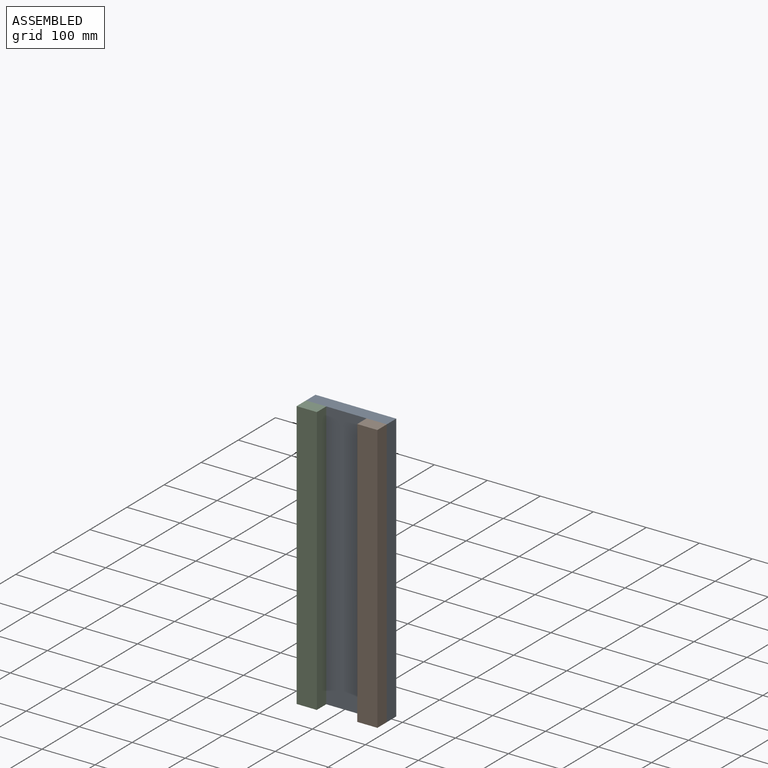
[diagram: assembled view]
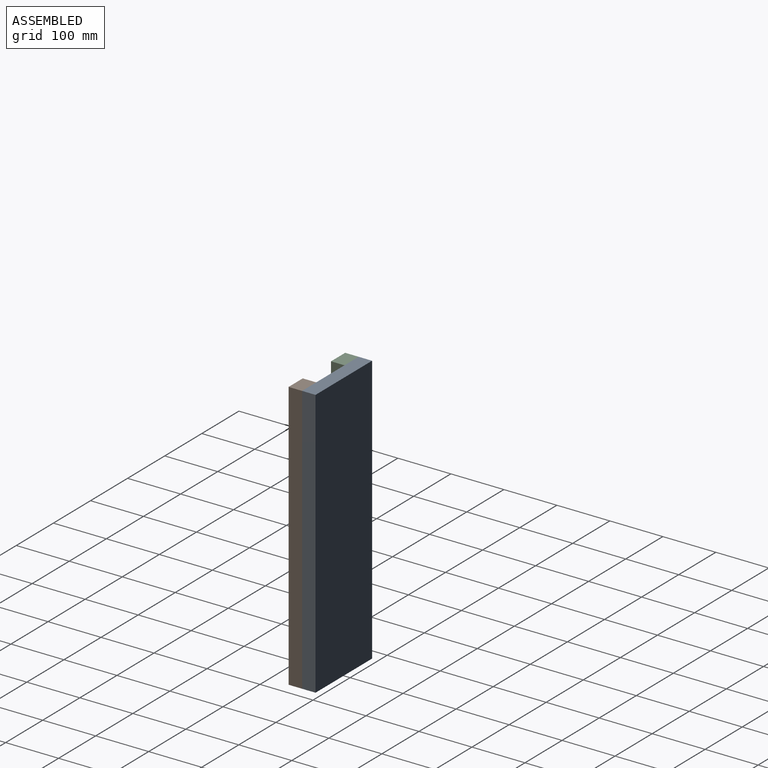
[diagram: assembled view, second angle]
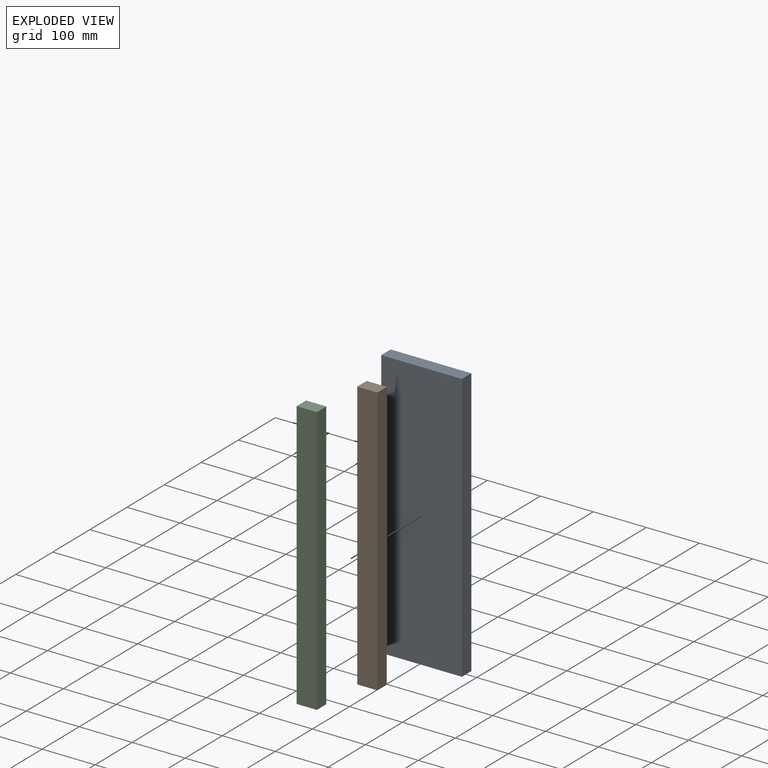
[diagram: exploded view]
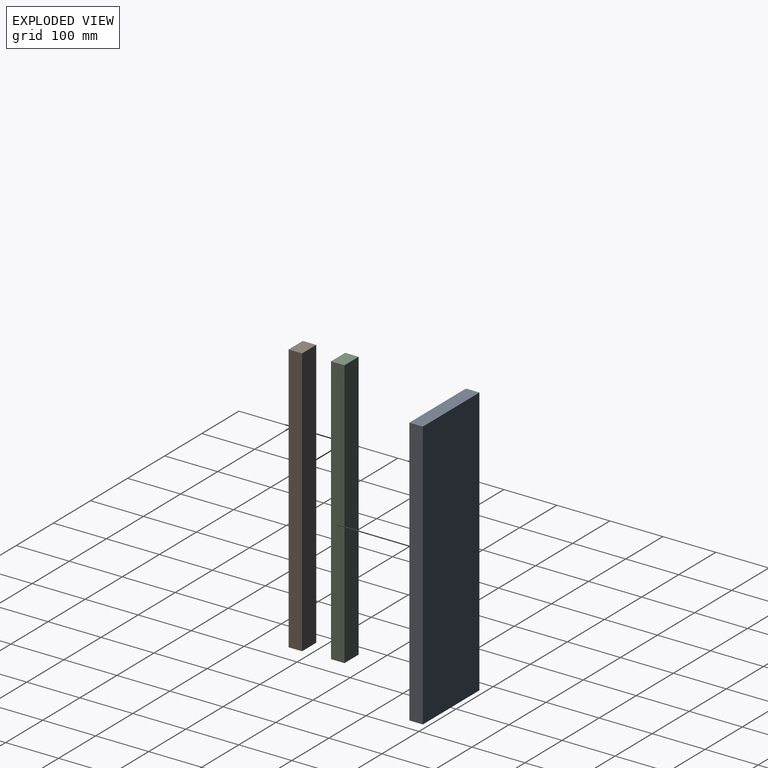
[diagram: exploded view, second angle]
ASSEMBLY  parts=3 mates=2
PART A: 6 faces, bbox 152.4x25.4x508 mm
  f0: plane 508x25.4mm, normal (1,0,0), area 12903.2mm2, adj f1,f3,f4,f5
  f1: plane 152.4x25.4mm, normal (0,0,1), area 3871mm2, adj f0,f2,f4,f5
  f2: plane 508x25.4mm, normal (-1,0,0), area 12903.2mm2, adj f1,f3,f4,f5
  f3: plane 152.4x25.4mm, normal (0,0,-1), area 3871mm2, adj f0,f2,f4,f5
  f4: plane 508x152.4mm, normal (0,1,0), area 77419.2mm2, adj f0,f1,f2,f3
  f5: plane 508x152.4mm, normal (0,-1,0), area 77419.2mm2, adj f0,f1,f2,f3
PART B: 6 faces, bbox 38.1x25.4x508 mm
  f0: plane 508x25.4mm, normal (1,0,0), area 12903.2mm2, adj f1,f3,f4,f5
  f1: plane 38.1x25.4mm, normal (0,0,1), area 967.7mm2, adj f0,f2,f4,f5
  f2: plane 508x25.4mm, normal (-1,0,0), area 12903.2mm2, adj f1,f3,f4,f5
  f3: plane 38.1x25.4mm, normal (0,0,-1), area 967.7mm2, adj f0,f2,f4,f5
  f4: plane 508x38.1mm, normal (0,-1,0), area 19354.8mm2, adj f0,f1,f2,f3
  f5: plane 508x38.1mm, normal (0,1,0), area 19354.8mm2, adj f0,f1,f2,f3
PART C: same geometry as B
PLACE A t=(-86.34,-227.63,-28.05)mm fixed
PLACE B t=(-29.19,-227.63,-28.05)mm
PLACE C t=(-143.49,-227.63,-28.05)mm
MATE fastened A.f1 <-> C.f1  axis (0,0,1) through (-162.54,-227.63,225.95)mm
MATE fastened B.f1 <-> A.f1  axis (0,0,1) through (-10.14,-227.63,225.95)mm
